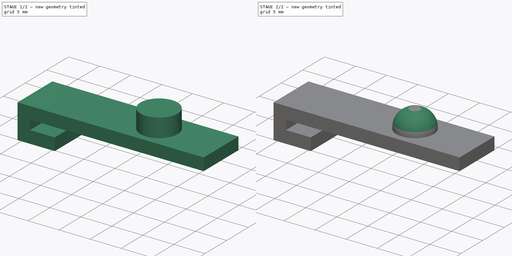
[diagram: build sequence overview — one tinted view per stage of 2, left to right]
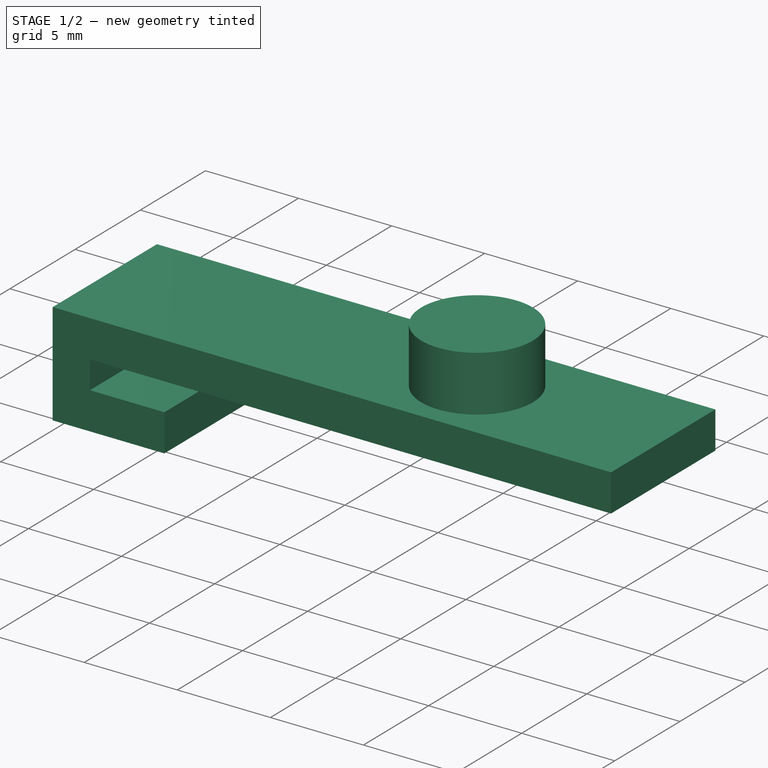
[diagram: stage 1 of 2 — iso view after this stage's code; geometry added in this stage tinted green]
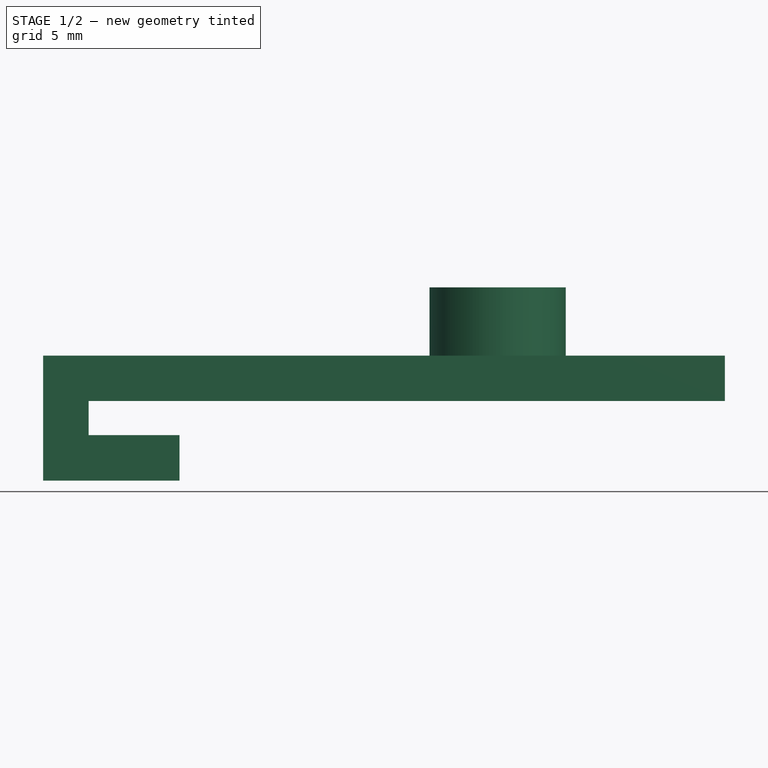
[diagram: stage 1 of 2 — front view after this stage's code; geometry added in this stage tinted green]
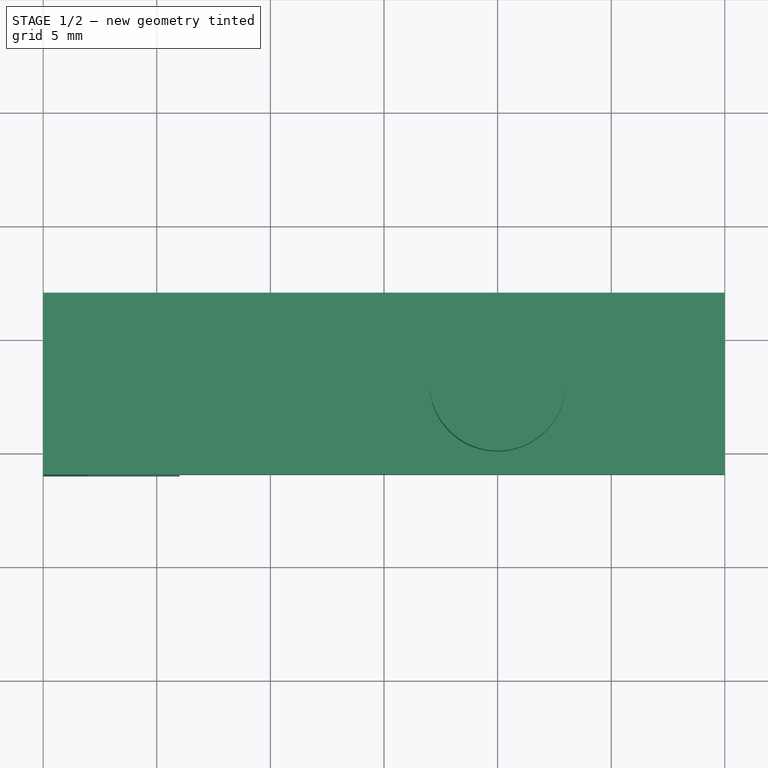
[diagram: stage 1 of 2 — top view after this stage's code; geometry added in this stage tinted green]
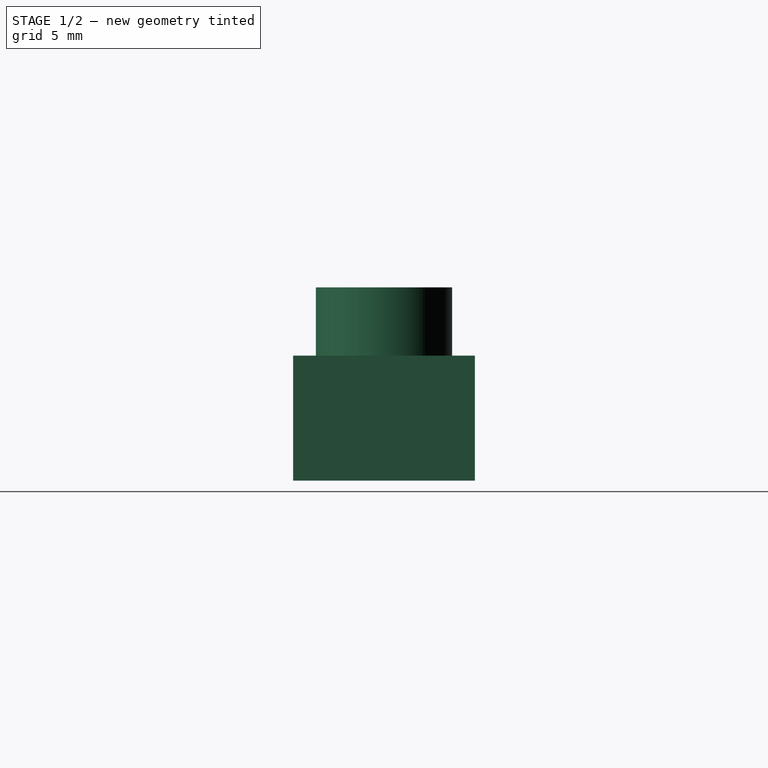
[diagram: stage 1 of 2 — right view after this stage's code; geometry added in this stage tinted green]
FCSTD DOCUMENT  (FreeCAD 0.20R29177 (Git))
Label: spring_mount
License: All rights reserved
LicenseURL: http://en.wikipedia.org/wiki/All_rights_reserved
objects: Sketcher::SketchObject×2, PartDesign::Pad×2, PartDesign::Fillet×1, PartDesign::Body×1
note: 9 computed .brp shape members not serialized (recipe doc carries the construction recipe); baked Part::Feature solids carry a one-line shape summary decoded from their .brp

FEATURE [Sketcher::SketchObject] Sketch002
  FullyConstrained = false
  MapMode = 5
  Placement = pos=(0,2,0) rot=(1,0,0;1.5708rad)
  sketch-geometry (9):
    g0: LineSegment StartX=20 StartY=0.5 StartZ=0 EndX=20 EndY=2.5 EndZ=0
    g1: LineSegment StartX=20 StartY=2.5 StartZ=0 EndX=-10 EndY=2.5 EndZ=0
    g2: LineSegment StartX=-10 StartY=2.5 StartZ=0 EndX=-10 EndY=0.547361 EndZ=0
    g3: LineSegment StartX=-10 StartY=0.547361 StartZ=0 EndX=-10 EndY=-3 EndZ=0
    g4: LineSegment StartX=-10 StartY=-3 StartZ=0 EndX=-4 EndY=-3 EndZ=0
    g5: LineSegment StartX=-4 StartY=-3 StartZ=0 EndX=-4 EndY=-1 EndZ=0
    g6: LineSegment StartX=-4 StartY=-1 StartZ=0 EndX=-8 EndY=-1 EndZ=0
    g7: LineSegment StartX=-8 StartY=-1 StartZ=0 EndX=-8 EndY=0.5 EndZ=0
    g8: LineSegment StartX=20 StartY=0.5 StartZ=0 EndX=-8 EndY=0.5 EndZ=0
  constraints (25):
    c: Coincident(g1,g0)
    c: Vertical(g0)
    c: DistanceX(g1,g1) = 30
    c: Coincident(g8,g0)
    c: Coincident(g8,g7)
    c: Horizontal(g8)
    c: Coincident(g2,g1)
    c: Vertical(g2)
    c: Tangent(g3,g2) = -1.5708
    c: Coincident(g3,g4)
    c: Coincident(g5,g6)
    c: Coincident(g4,g5)
    c: Horizontal(g1)
    c: DistanceY(g7,g7) = 1.5
    c: Coincident(g6,g7)
    c: Horizontal(g6)
    c: DistanceY(g5,g5) = 2
    c: Horizontal(g4)
    c: Vertical(g7)
    c: DistanceY(g0,g0) = 2
    c: DistanceX(g6,g6) = 4
    c: Vertical(g5)
    c: DistanceX(g4,g4) = 6
    c: DistanceX(g1,g-1) = 10
    c: DistanceY(g-1,g1) = 2.5
FEATURE [PartDesign::Pad] Pad002
  Direction = (0,-1,2e-16)
  Length = 8
  Length2 = 100
  Placement = pos=(0,2,0) rot=(1,0,0;1.5708rad)
  Profile = -> Sketch002
  ReferenceAxis = -> Sketch002 [N_Axis]
  Type = 0
FEATURE [Sketcher::SketchObject] Sketch
  FullyConstrained = true
  MapMode = 5
  Placement = pos=(0,2,2.5) rot=(0,0,1;3.14159rad)
  Support = -> [Pad002]
  sketch-geometry (1):
    g0: Circle CenterX=-10 CenterY=4 CenterZ=0 NormalX=0 NormalY=0 NormalZ=1 AngleXU=0 Radius=3
  constraints (3):
    c: DistanceX(g0,g-1) = 10
    c: DistanceY(g-1,g0) = 4
    c: Diameter(g0) = 6
FEATURE [PartDesign::Pad] Pad
  BaseFeature = -> Pad002
  Direction = (0,3e-16,1)
  Length = 3
  Length2 = 10
  Placement = pos=(0,2,0) rot=(1,0,0;1.5708rad)
  Profile = -> Sketch
  ReferenceAxis = -> Sketch [N_Axis]
  Type = 0
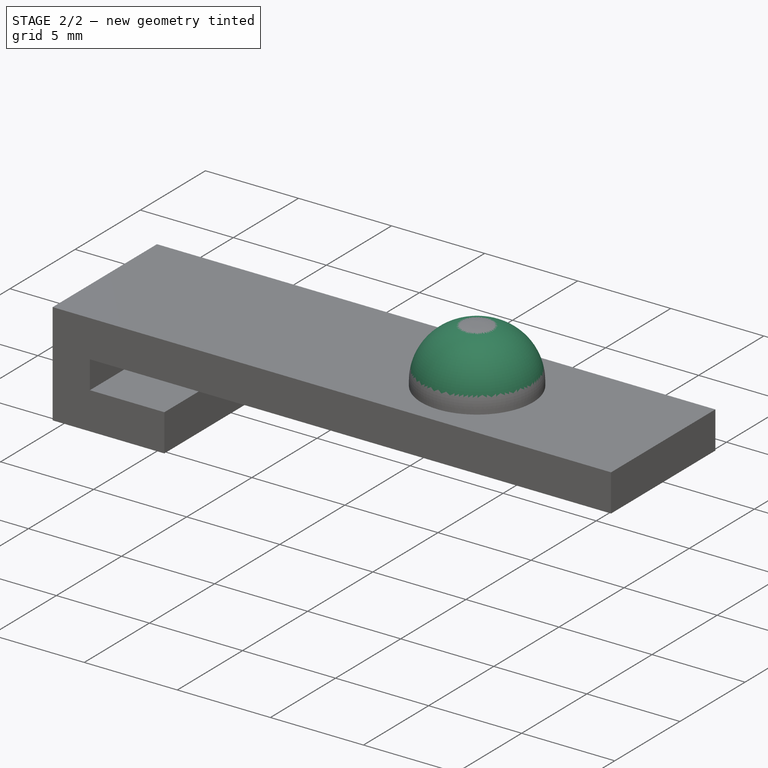
[diagram: stage 2 of 2 — iso view after this stage's code; geometry added in this stage tinted green]
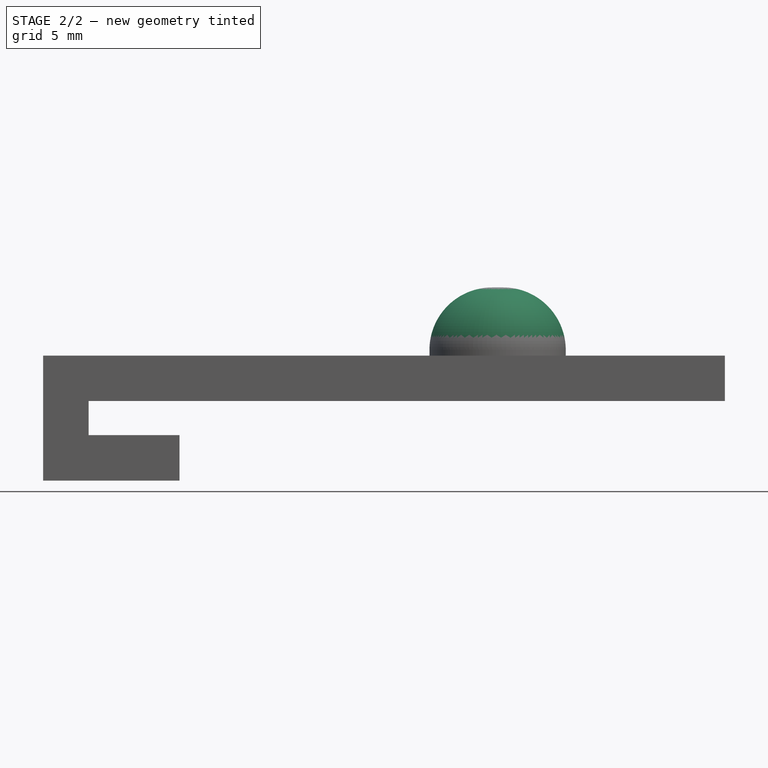
[diagram: stage 2 of 2 — front view after this stage's code; geometry added in this stage tinted green]
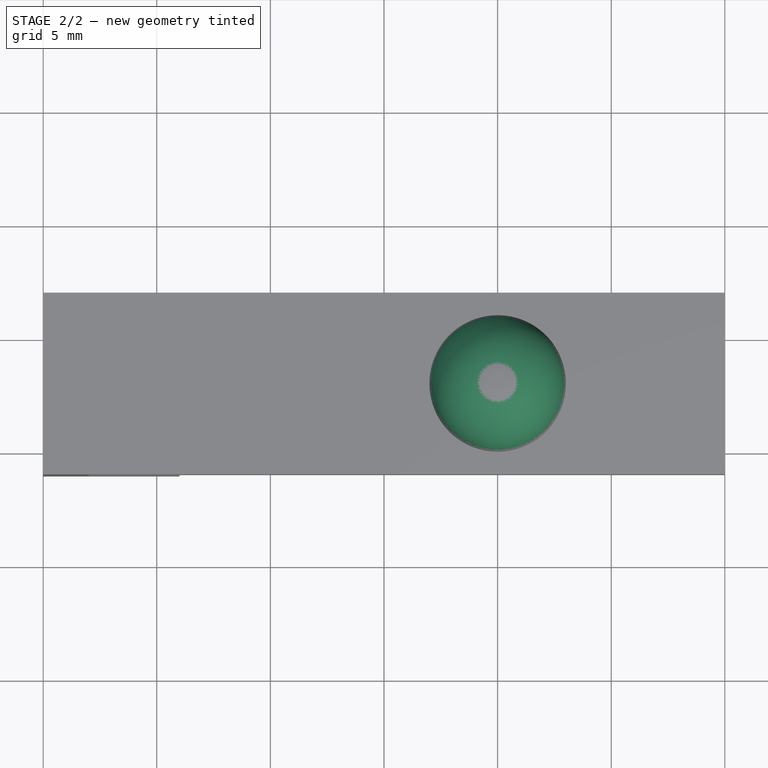
[diagram: stage 2 of 2 — top view after this stage's code; geometry added in this stage tinted green]
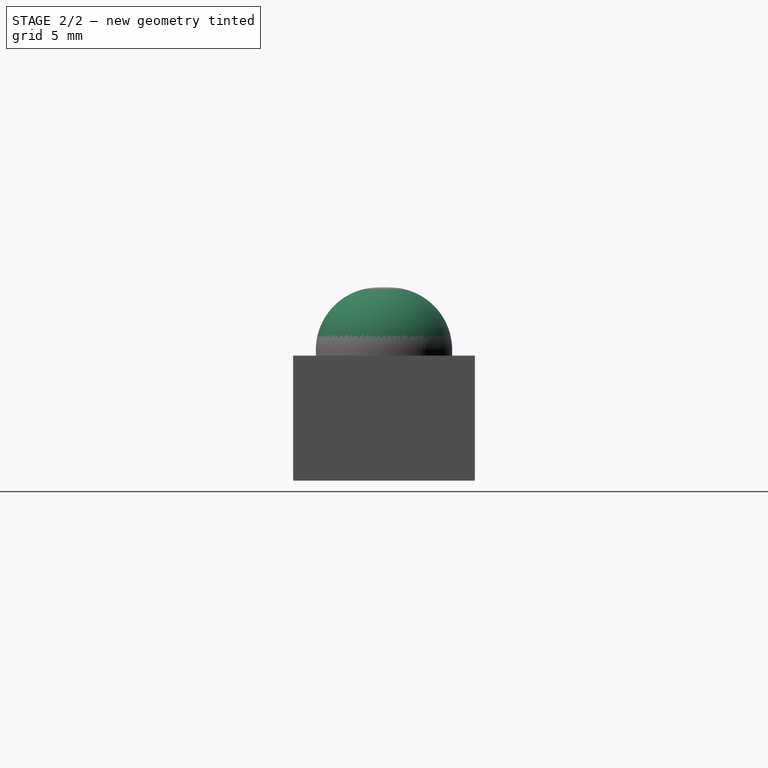
[diagram: stage 2 of 2 — right view after this stage's code; geometry added in this stage tinted green]
FEATURE [PartDesign::Fillet] Fillet
  Base = -> Pad [Edge27]
  BaseFeature = -> Pad
  Placement = pos=(0,2,0) rot=(1,0,0;1.5708rad)
  Radius = 2.75
  SupportTransform = false
  UseAllEdges = false
FEATURE [PartDesign::Body] Body
  Group = -> [Sketch002,Pad002,Sketch,Pad,Fillet]
  Origin = -> Origin
  Tip = -> Fillet
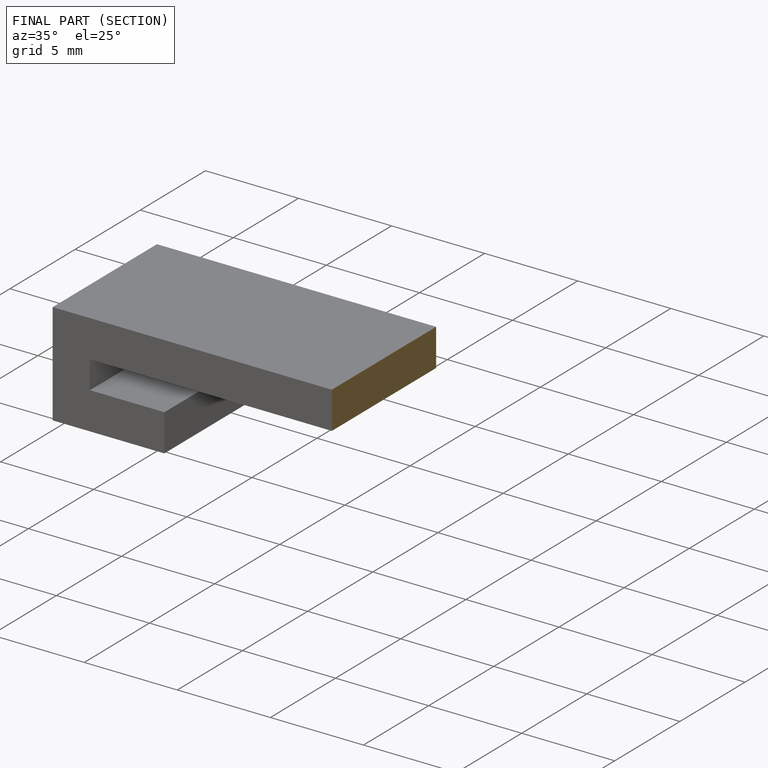
[diagram: finished part — half-section view (interior)]
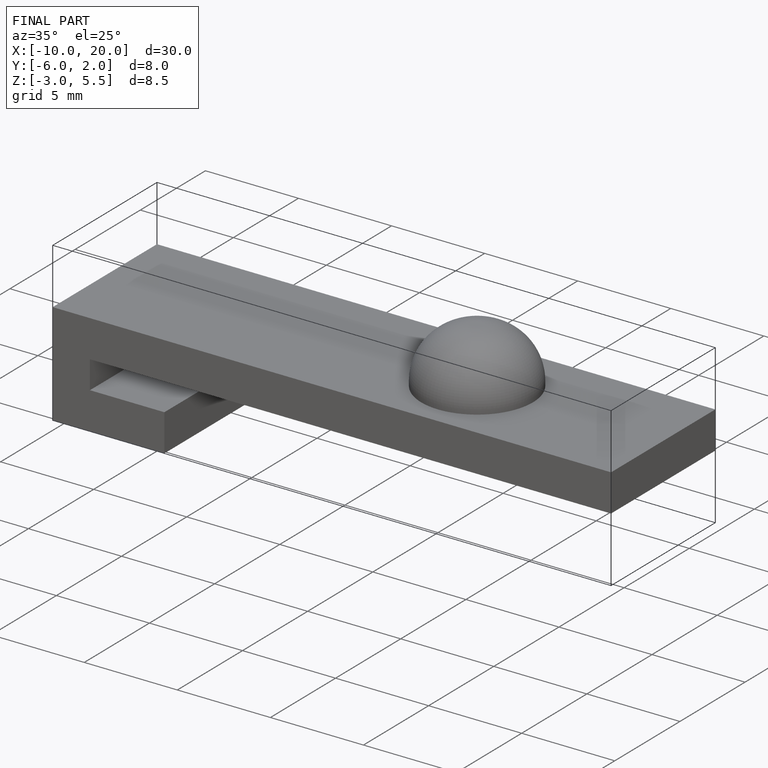
[diagram: finished part — iso view with bounding-box wireframe]
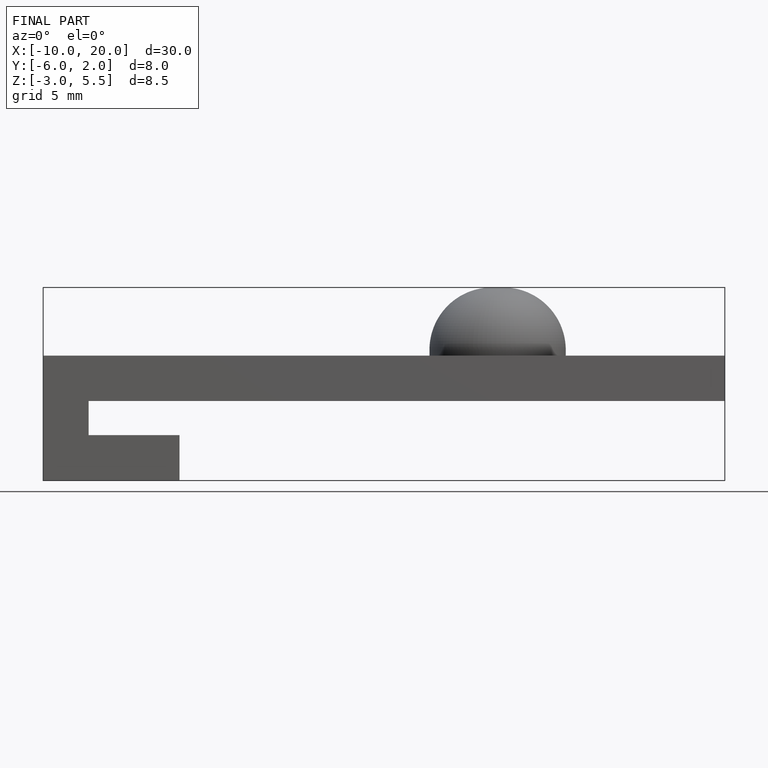
[diagram: finished part — front view with bounding-box wireframe]
